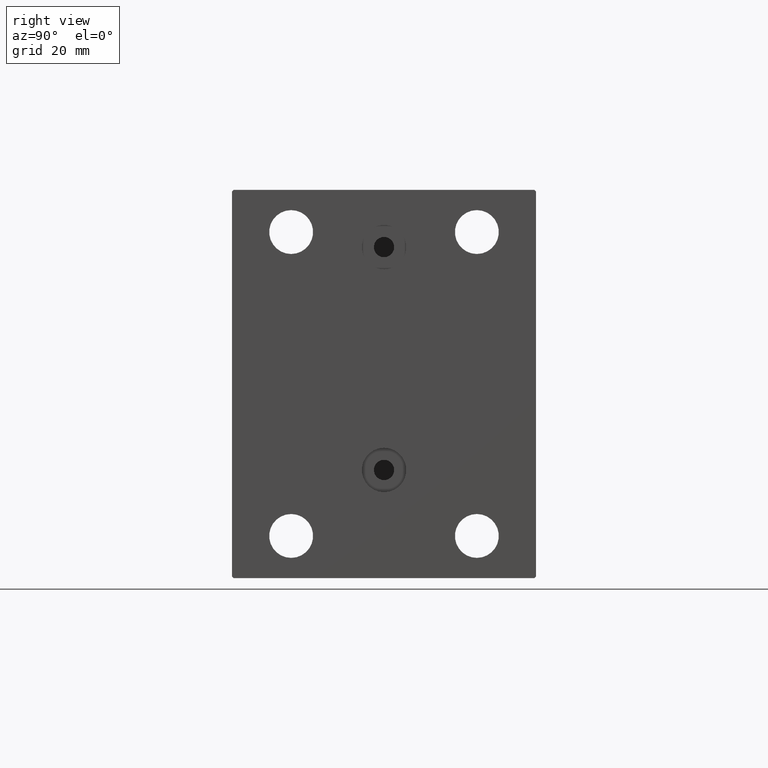
[diagram: clean part render]
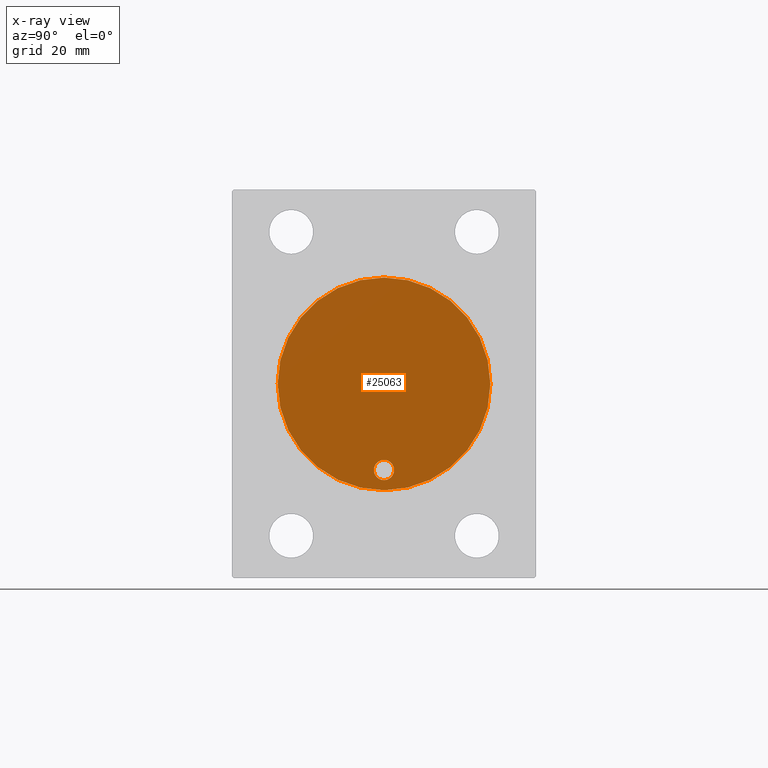
[diagram: x-ray — body ghosted, one internal face saturated and labeled with its STEP entity id]
A machine part, right view, then the same camera in x-ray: the body is ghosted and one INTERNAL B-rep face — a face not visible from any outside direction — is saturated and labeled: STEP entity #25063.
In plain terms, the highlighted planar face has unit normal (-1, 0, 0).
Its self-contained STEP definition (entity closure, byte-faithful):
#191 = ORIENTED_EDGE ( 'NONE', *, *, #35253, .T. ) ;
#3869 = ORIENTED_EDGE ( 'NONE', *, *, #43149, .F. ) ;
#4478 = AXIS2_PLACEMENT_3D ( 'NONE', #39221, #7030, #10933 ) ;
#5029 = ORIENTED_EDGE ( 'NONE', *, *, #31125, .T. ) ;
#7030 = DIRECTION ( 'NONE',  ( -1.000000000000000000, 0.000000000000000000, 0.000000000000000000 ) ) ;
#7368 = FACE_BOUND ( 'NONE', #27530, .T. ) ;
#10933 = DIRECTION ( 'NONE',  ( 0.000000000000000000, 0.000000000000000000, 1.000000000000000000 ) ) ;
#11494 = DIRECTION ( 'NONE',  ( -1.000000000000000000, 0.000000000000000000, 0.000000000000000000 ) ) ;
#13770 = CIRCLE ( 'NONE', #41707, 31.50000000000000000 ) ;
#13944 = CARTESIAN_POINT ( 'NONE',  ( 51.00000000000000000, 0.000000000000000000, 0.000000000000000000 ) ) ;
#14865 = DIRECTION ( 'NONE',  ( -1.000000000000000000, 0.000000000000000000, 0.000000000000000000 ) ) ;
#15834 = VERTEX_POINT ( 'NONE', #39016 ) ;
#19186 = CARTESIAN_POINT ( 'NONE',  ( 51.00000000000000000, 3.122849337825749828E-15, -28.49999999999999645 ) ) ;
#21366 = FACE_OUTER_BOUND ( 'NONE', #26759, .T. ) ;
#21895 = DIRECTION ( 'NONE',  ( 0.000000000000000000, 0.000000000000000000, 1.000000000000000000 ) ) ;
#22053 = DIRECTION ( 'NONE',  ( 0.000000000000000000, 0.000000000000000000, 1.000000000000000000 ) ) ;
#22563 = CARTESIAN_POINT ( 'NONE',  ( 51.00000000000000000, 3.490243377569955667E-15, -22.49999999999999289 ) ) ;
#23996 = DIRECTION ( 'NONE',  ( -1.000000000000000000, 0.000000000000000000, 0.000000000000000000 ) ) ;
#24821 = CIRCLE ( 'NONE', #35099, 3.000000000000002665 ) ;
#24875 = VERTEX_POINT ( 'NONE', #22563 ) ;
#25063 = ADVANCED_FACE ( 'NONE', ( #7368, #21366 ), #39551, .T. ) ;
#25873 = VERTEX_POINT ( 'NONE', #41875 ) ;
#26759 = EDGE_LOOP ( 'NONE', ( #191, #5029 ) ) ;
#27221 = CIRCLE ( 'NONE', #4478, 3.000000000000002665 ) ;
#27530 = EDGE_LOOP ( 'NONE', ( #35443, #3869 ) ) ;
#27902 = VERTEX_POINT ( 'NONE', #19186 ) ;
#31123 = CARTESIAN_POINT ( 'NONE',  ( 51.00000000000000000, 0.000000000000000000, 0.000000000000000000 ) ) ;
#31125 = EDGE_CURVE ( 'NONE', #15834, #25873, #13770, .T. ) ;
#31765 = EDGE_CURVE ( 'NONE', #27902, #24875, #24821, .T. ) ;
#33014 = DIRECTION ( 'NONE',  ( 0.000000000000000000, 0.000000000000000000, 1.000000000000000000 ) ) ;
#35099 = AXIS2_PLACEMENT_3D ( 'NONE', #39922, #14865, #33014 ) ;
#35253 = EDGE_CURVE ( 'NONE', #25873, #15834, #45451, .T. ) ;
#35443 = ORIENTED_EDGE ( 'NONE', *, *, #31765, .F. ) ;
#35871 = CARTESIAN_POINT ( 'NONE',  ( 51.00000000000000000, 0.000000000000000000, 0.000000000000000000 ) ) ;
#35935 = AXIS2_PLACEMENT_3D ( 'NONE', #13944, #39396, #21895 ) ;
#39016 = CARTESIAN_POINT ( 'NONE',  ( 51.00000000000000000, 3.857637417314162689E-15, -31.50000000000000000 ) ) ;
#39221 = CARTESIAN_POINT ( 'NONE',  ( 51.00000000000000000, 3.122849337825749828E-15, -25.49999999999999645 ) ) ;
#39396 = DIRECTION ( 'NONE',  ( -1.000000000000000000, 0.000000000000000000, 0.000000000000000000 ) ) ;
#39551 = PLANE ( 'NONE',  #44480 ) ;
#39922 = CARTESIAN_POINT ( 'NONE',  ( 51.00000000000000000, 3.122849337825749828E-15, -25.49999999999999645 ) ) ;
#41707 = AXIS2_PLACEMENT_3D ( 'NONE', #31123, #23996, #41944 ) ;
#41875 = CARTESIAN_POINT ( 'NONE',  ( 51.00000000000000000, 0.000000000000000000, 31.50000000000000000 ) ) ;
#41944 = DIRECTION ( 'NONE',  ( 0.000000000000000000, 0.000000000000000000, 1.000000000000000000 ) ) ;
#43149 = EDGE_CURVE ( 'NONE', #24875, #27902, #27221, .T. ) ;
#44480 = AXIS2_PLACEMENT_3D ( 'NONE', #35871, #11494, #22053 ) ;
#45451 = CIRCLE ( 'NONE', #35935, 31.50000000000000000 ) ;